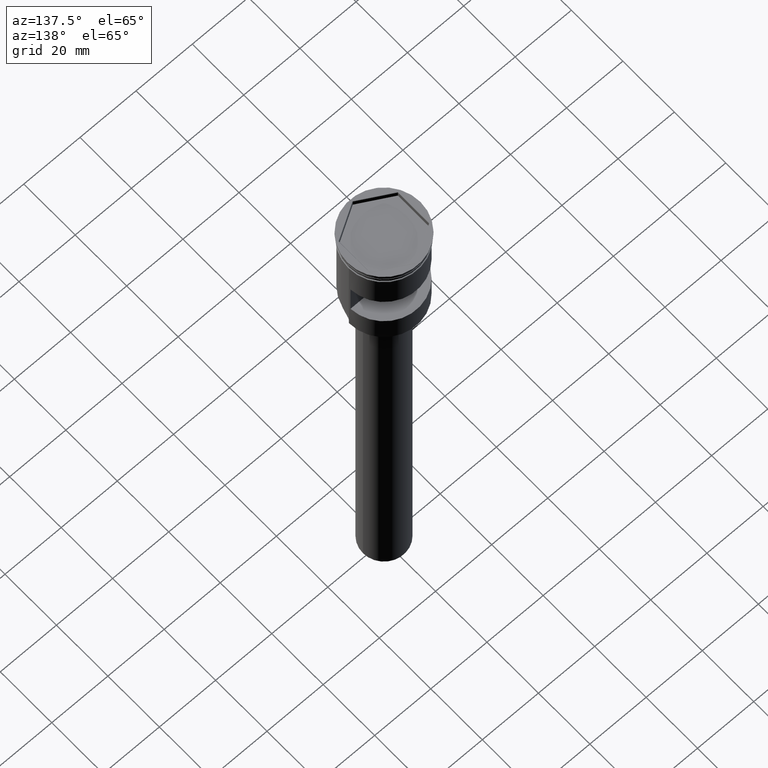
[diagram: clean part render]
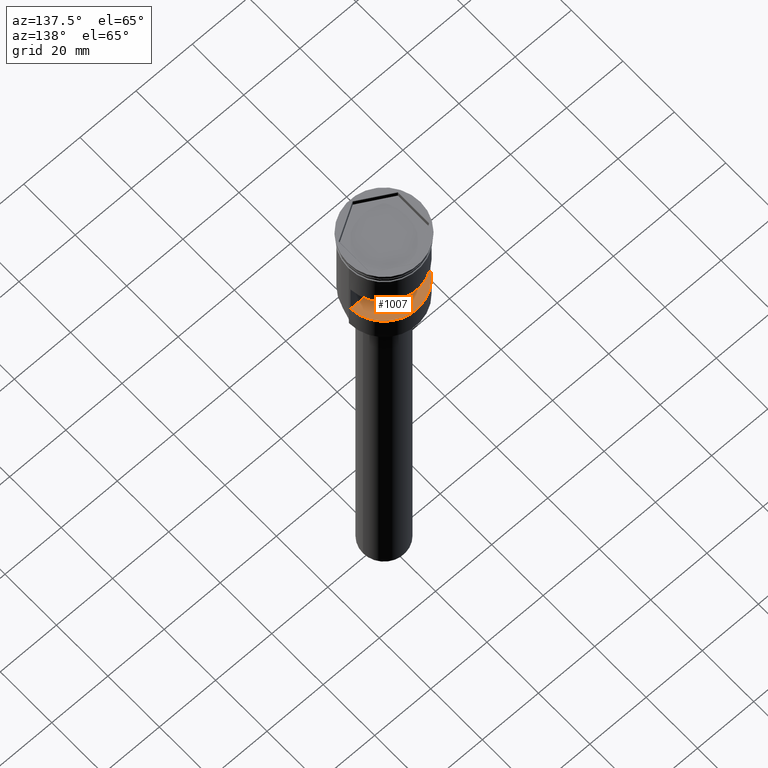
[diagram: same view with one face highlighted and labeled with its STEP entity id]
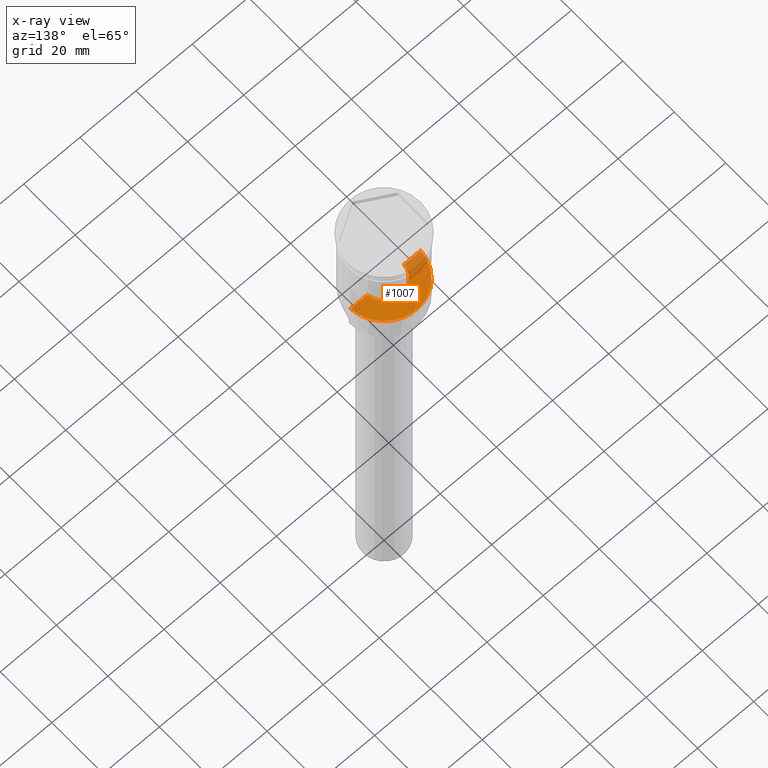
[diagram: x-ray of the same camera — body ghosted, the highlighted face saturated]
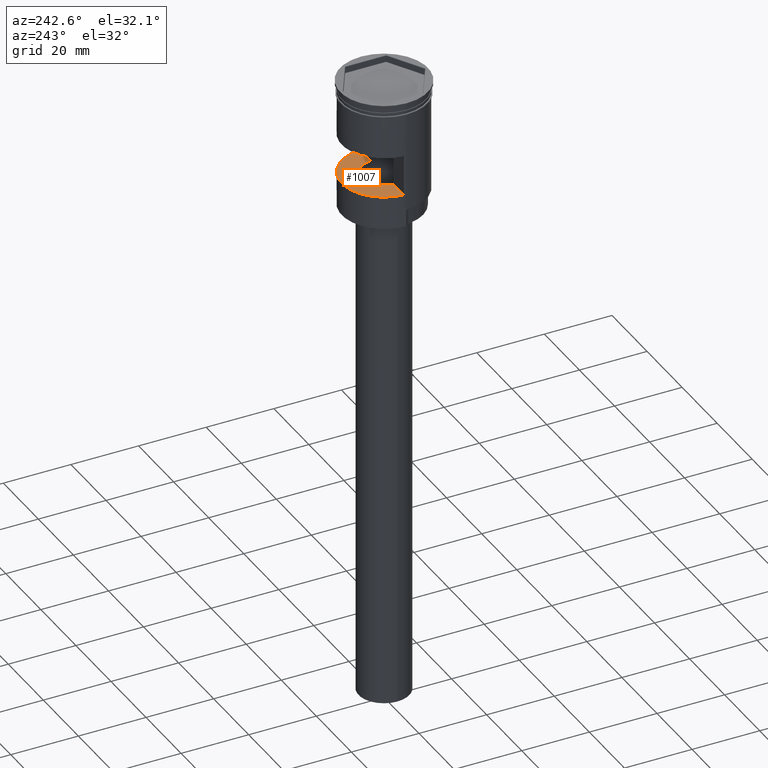
[diagram: same view with one face highlighted and labeled with its STEP entity id]
A machine part, auxiliary view. The second image highlights one B-rep face of the part: STEP entity #1007.
The next image is the same camera in x-ray: the body ghosted, the highlighted face saturated — about 16% of this face is hidden behind the body in this view.
A second angle (auxiliary view) of the same face is appended — the face is thin or edge-on in the first view.
In plain terms, the highlighted planar face has unit normal (-0, 0, -1).
Its self-contained STEP definition (entity closure, byte-faithful):
#14 = ORIENTED_EDGE ( 'NONE', *, *, #801, .T. ) ;
#76 = CARTESIAN_POINT ( 'NONE',  ( -6.472248450113762708, 0.6000000000000003109, -28.49999999999999645 ) ) ;
#214 = CARTESIAN_POINT ( 'NONE',  ( -13.00000000000000178, 12.49999999999999645, -28.49999999999999645 ) ) ;
#393 = CARTESIAN_POINT ( 'NONE',  ( 0.000000000000000000, 0.000000000000000000, -28.49999999999999645 ) ) ;
#430 = VECTOR ( 'NONE', #493, 1000.000000000000000 ) ;
#451 = DIRECTION ( 'NONE',  ( -0.000000000000000000, -0.000000000000000000, -1.000000000000000000 ) ) ;
#453 = CARTESIAN_POINT ( 'NONE',  ( 12.48559169603106689, 0.6000000000000003109, -28.49999999999999645 ) ) ;
#493 = DIRECTION ( 'NONE',  ( 1.000000000000000000, -0.000000000000000000, -0.000000000000000000 ) ) ;
#498 = VERTEX_POINT ( 'NONE', #1394 ) ;
#499 = CARTESIAN_POINT ( 'NONE',  ( 6.472248450113761820, 0.6000000000000003109, -28.49999999999999645 ) ) ;
#527 = ORIENTED_EDGE ( 'NONE', *, *, #716, .T. ) ;
#536 = AXIS2_PLACEMENT_3D ( 'NONE', #214, #937, #823 ) ;
#540 = EDGE_LOOP ( 'NONE', ( #683, #527, #14, #982 ) ) ;
#652 = FACE_OUTER_BOUND ( 'NONE', #540, .T. ) ;
#683 = ORIENTED_EDGE ( 'NONE', *, *, #1242, .T. ) ;
#716 = EDGE_CURVE ( 'NONE', #1107, #778, #862, .T. ) ;
#741 = LINE ( 'NONE', #1006, #430 ) ;
#778 = VERTEX_POINT ( 'NONE', #499 ) ;
#787 = DIRECTION ( 'NONE',  ( 0.000000000000000000, 0.000000000000000000, 1.000000000000000000 ) ) ;
#801 = EDGE_CURVE ( 'NONE', #778, #1488, #741, .T. ) ;
#823 = DIRECTION ( 'NONE',  ( -1.000000000000000000, 0.000000000000000000, 0.000000000000000000 ) ) ;
#862 = CIRCLE ( 'NONE', #1414, 6.500000000000000888 ) ;
#937 = DIRECTION ( 'NONE',  ( -0.000000000000000000, 0.000000000000000000, -1.000000000000000000 ) ) ;
#939 = DIRECTION ( 'NONE',  ( -1.000000000000000000, 0.000000000000000000, 0.000000000000000000 ) ) ;
#957 = CARTESIAN_POINT ( 'NONE',  ( 0.000000000000000000, 0.000000000000000000, -28.49999999999999645 ) ) ;
#982 = ORIENTED_EDGE ( 'NONE', *, *, #1332, .T. ) ;
#1000 = CIRCLE ( 'NONE', #1023, 12.49999999999999645 ) ;
#1006 = CARTESIAN_POINT ( 'NONE',  ( -13.00000000000000178, 0.6000000000000003109, -28.49999999999999645 ) ) ;
#1007 = ADVANCED_FACE ( 'NONE', ( #652 ), #1326, .F. ) ;
#1023 = AXIS2_PLACEMENT_3D ( 'NONE', #393, #787, #1269 ) ;
#1107 = VERTEX_POINT ( 'NONE', #76 ) ;
#1242 = EDGE_CURVE ( 'NONE', #498, #1107, #1484, .T. ) ;
#1269 = DIRECTION ( 'NONE',  ( -1.000000000000000000, 0.000000000000000000, 0.000000000000000000 ) ) ;
#1326 = PLANE ( 'NONE',  #536 ) ;
#1332 = EDGE_CURVE ( 'NONE', #1488, #498, #1000, .T. ) ;
#1363 = CARTESIAN_POINT ( 'NONE',  ( -13.00000000000000178, 0.6000000000000003109, -28.49999999999999645 ) ) ;
#1364 = VECTOR ( 'NONE', #1491, 1000.000000000000000 ) ;
#1394 = CARTESIAN_POINT ( 'NONE',  ( -12.48559169603106689, 0.6000000000000003109, -28.49999999999999645 ) ) ;
#1414 = AXIS2_PLACEMENT_3D ( 'NONE', #957, #451, #939 ) ;
#1484 = LINE ( 'NONE', #1363, #1364 ) ;
#1488 = VERTEX_POINT ( 'NONE', #453 ) ;
#1491 = DIRECTION ( 'NONE',  ( 1.000000000000000000, -0.000000000000000000, -0.000000000000000000 ) ) ;